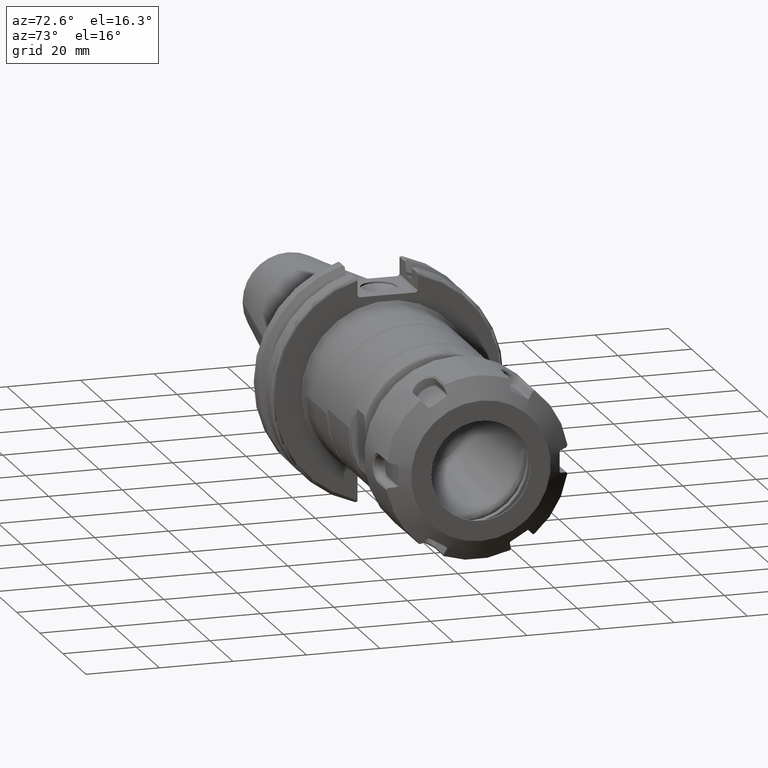
[diagram: clean part render]
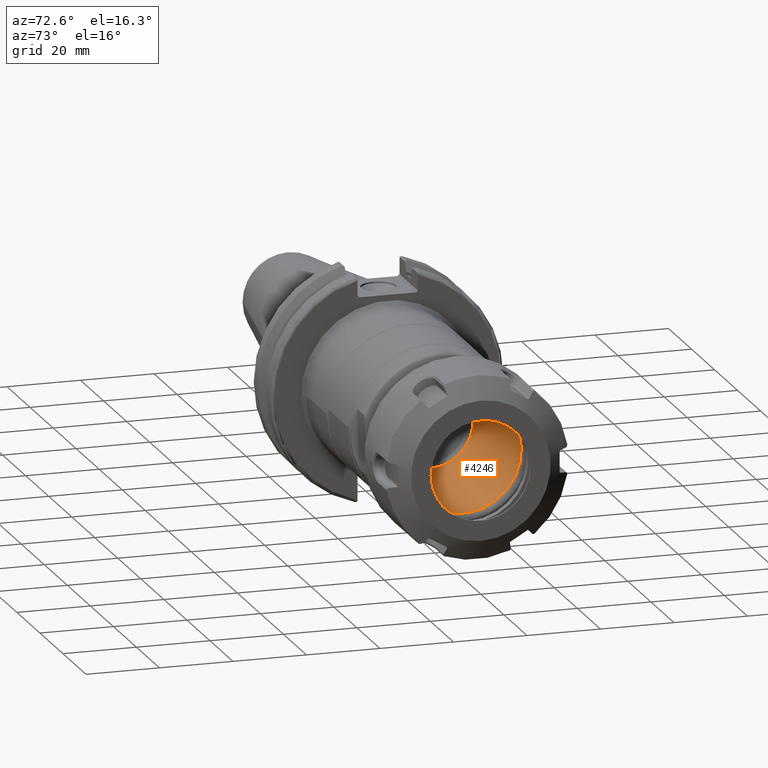
[diagram: same view with one face highlighted and labeled with its STEP entity id]
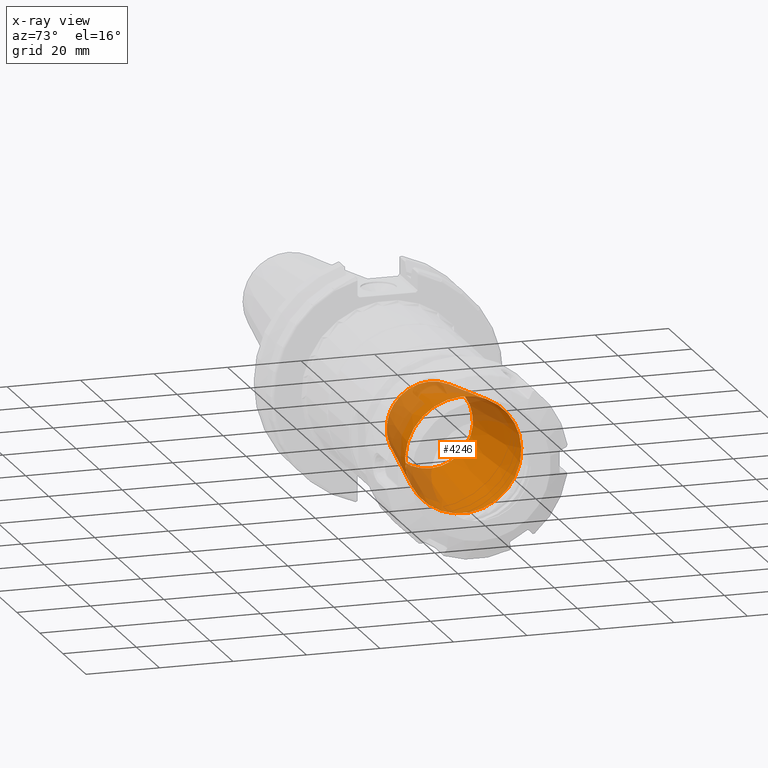
[diagram: x-ray of the same camera — body ghosted, the highlighted face saturated]
A machine part, auxiliary view. The second image highlights one B-rep face of the part: STEP entity #4246.
The next image is the same camera in x-ray: the body ghosted, the highlighted face saturated — about 31% of this face is hidden behind the body in this view.
In plain terms, the highlighted conical surface has half-angle 8 deg.
Its self-contained STEP definition (entity closure, byte-faithful):
#674=FACE_OUTER_BOUND('',#964,.T.);
#964=EDGE_LOOP('',(#3538,#3539,#3540,#3541,#3542));
#1226=LINE('',#7380,#1466);
#1466=VECTOR('',#5733,13.875);
#1704=CIRCLE('',#4751,15.818528003612);
#1705=CIRCLE('',#4752,15.818528003612);
#1707=CIRCLE('',#4755,11.75);
#2047=VERTEX_POINT('',#7373);
#2048=VERTEX_POINT('',#7374);
#2049=VERTEX_POINT('',#7379);
#2569=EDGE_CURVE('',#2047,#2048,#1704,.T.);
#2570=EDGE_CURVE('',#2048,#2047,#1705,.T.);
#2572=EDGE_CURVE('',#2048,#2049,#1226,.T.);
#2573=EDGE_CURVE('',#2049,#2049,#1707,.T.);
#3538=ORIENTED_EDGE('',*,*,#2569,.F.);
#3539=ORIENTED_EDGE('',*,*,#2570,.F.);
#3540=ORIENTED_EDGE('',*,*,#2572,.T.);
#3541=ORIENTED_EDGE('',*,*,#2573,.F.);
#3542=ORIENTED_EDGE('',*,*,#2572,.F.);
#4081=CONICAL_SURFACE('',#4754,13.875,0.139626340159547);
#4246=ADVANCED_FACE('',(#674),#4081,.F.);
#4751=AXIS2_PLACEMENT_3D('',#7375,#5725,#5726);
#4752=AXIS2_PLACEMENT_3D('',#7376,#5727,#5728);
#4754=AXIS2_PLACEMENT_3D('',#7378,#5731,#5732);
#4755=AXIS2_PLACEMENT_3D('',#7381,#5734,#5735);
#5725=DIRECTION('center_axis',(-1.,0.,0.));
#5726=DIRECTION('ref_axis',(0.,-1.,3.06161699786838E-17));
#5727=DIRECTION('center_axis',(-1.,0.,0.));
#5728=DIRECTION('ref_axis',(0.,-1.,3.06161699786838E-17));
#5731=DIRECTION('center_axis',(1.,0.,0.));
#5732=DIRECTION('ref_axis',(0.,1.,0.));
#5733=DIRECTION('',(-0.99026806874157,0.139173100960066,1.70437892618156E-17));
#5734=DIRECTION('center_axis',(1.,0.,0.));
#5735=DIRECTION('ref_axis',(0.,0.,-1.));
#7373=CARTESIAN_POINT('',(27.2087596514401,-1.93721096868462E-15,15.818528003612));
#7374=CARTESIAN_POINT('',(27.2087596514401,-15.818528003612,-1.93721096868462E-15));
#7375=CARTESIAN_POINT('Origin',(27.2087596514401,0.,-2.42151371085577E-15));
#7376=CARTESIAN_POINT('Origin',(27.2087596514401,0.,-2.42151371085577E-15));
#7378=CARTESIAN_POINT('Origin',(13.3798393399336,0.,0.));
#7379=CARTESIAN_POINT('',(-1.74032132013282,-11.75,-1.43895998899814E-15));
#7380=CARTESIAN_POINT('',(13.3798393399336,-13.875,-1.69919743381695E-15));
#7381=CARTESIAN_POINT('Origin',(-1.74032132013282,0.,0.));